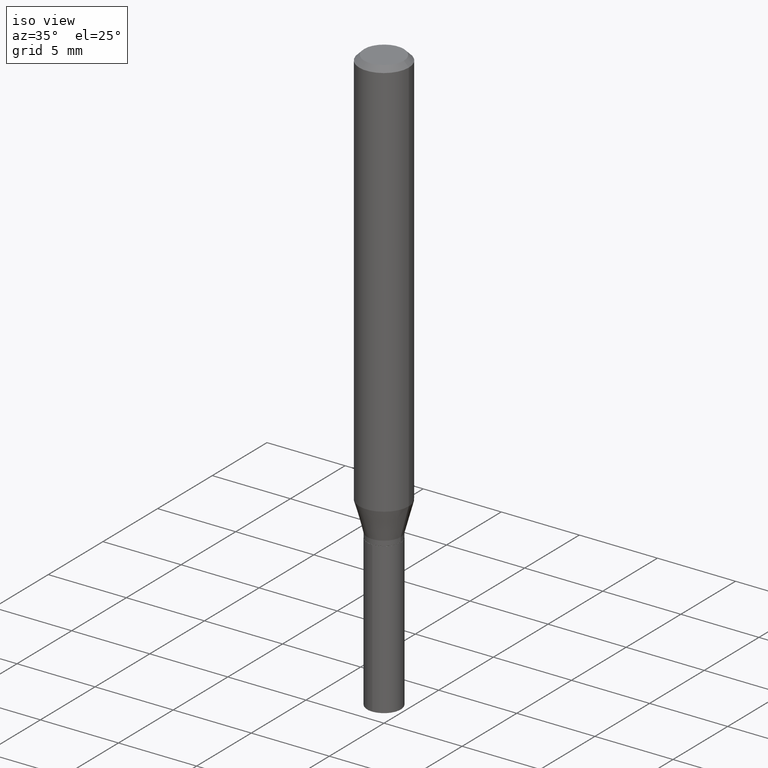
[diagram: clean part render]
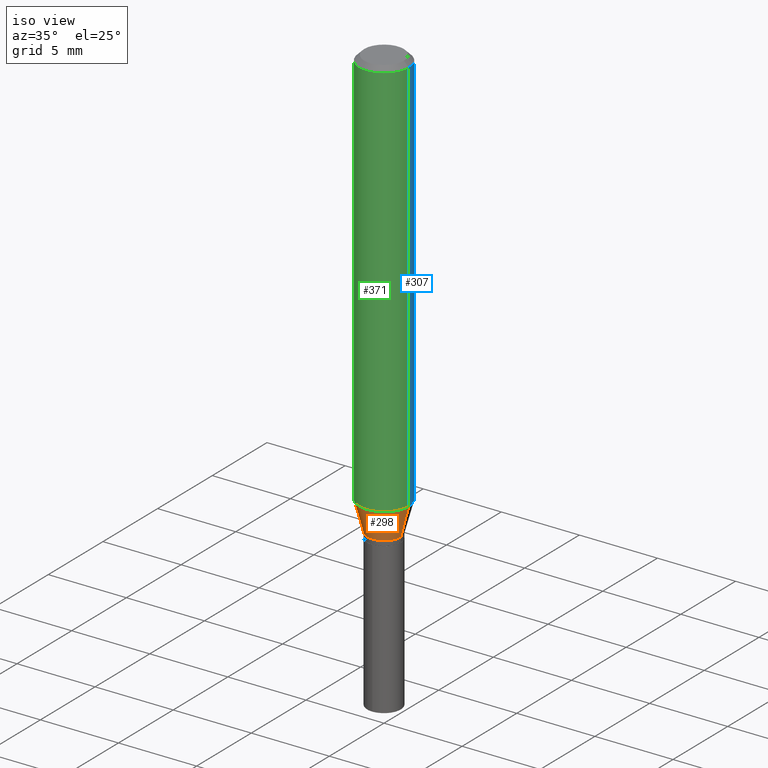
[diagram: same view with three faces highlighted in distinct colors, each labeled with its STEP entity id]
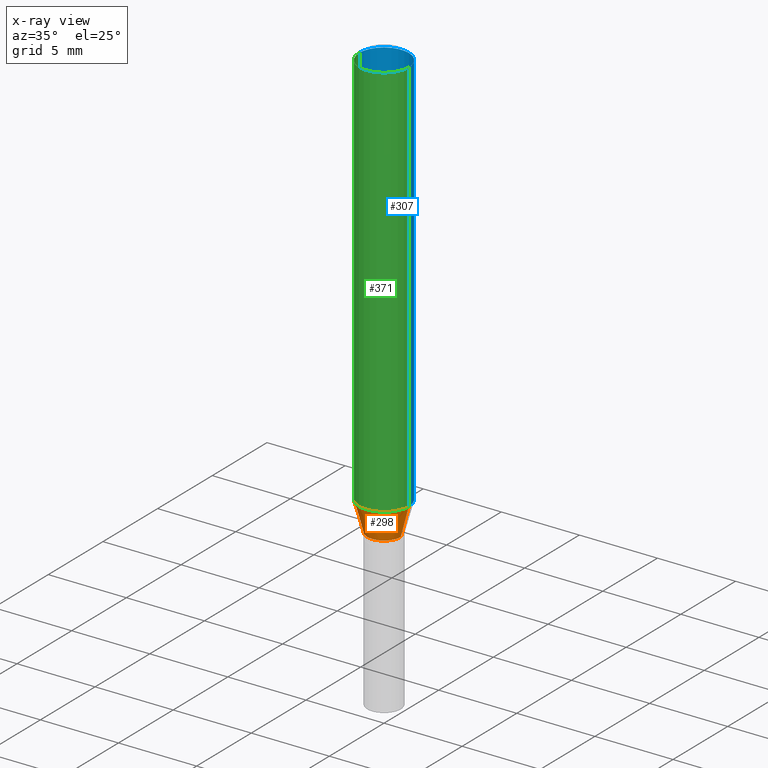
[diagram: x-ray of the same camera — body ghosted, the three highlighted faces saturated]
A machine part, iso view with three faces highlighted in distinct colors.
The next image is the same camera in x-ray (body ghosted, the three faces saturated) — at least one of them is partly hidden behind the body in this view.
Their STEP definitions:

[orange] entity #298 — the highlighted conical surface has half-angle 15 deg.
#10 = CARTESIAN_POINT ( 'NONE',  ( 0.04229999999999999732, -4.091666980990281781E-15, -1.087300000000000155 ) ) ;
#18 = CARTESIAN_POINT ( 'NONE',  ( -0.04229999999999999732, -3.495728082497630319E-15, -1.087300000000000155 ) ) ;
#39 = EDGE_CURVE ( 'NONE', #382, #103, #442, .T. ) ;
#42 = CARTESIAN_POINT ( 'NONE',  ( 2.658958232965099489E-29, -3.796287659724152333E-15, -1.087300000000000155 ) ) ;
#50 = DIRECTION ( 'NONE',  ( 1.000000000000000000, -6.982962677686266711E-15, 0.000000000000000000 ) ) ;
#53 = LINE ( 'NONE', #18, #302 ) ;
#88 = CARTESIAN_POINT ( 'NONE',  ( 2.474600633538342293E-29, -3.533073867569279079E-15, -1.011912573687108630 ) ) ;
#95 = VERTEX_POINT ( 'NONE', #148 ) ;
#103 = VERTEX_POINT ( 'NONE', #118 ) ;
#114 = DIRECTION ( 'NONE',  ( -2.445468806185136597E-29, 3.491481338843145583E-15, 1.000000000000000000 ) ) ;
#118 = CARTESIAN_POINT ( 'NONE',  ( 0.04229999999999999732, -4.091666980990281781E-15, -1.087300000000000155 ) ) ;
#123 = CARTESIAN_POINT ( 'NONE',  ( 2.658958232965099489E-29, -3.796287659724152333E-15, -1.087300000000000155 ) ) ;
#148 = CARTESIAN_POINT ( 'NONE',  ( 0.06250000000000012490, -3.969509034924671143E-15, -1.011912573687108630 ) ) ;
#167 = EDGE_CURVE ( 'NONE', #103, #95, #316, .T. ) ;
#173 = EDGE_CURVE ( 'NONE', #373, #95, #204, .T. ) ;
#176 = ORIENTED_EDGE ( 'NONE', *, *, #167, .T. ) ;
#181 = CARTESIAN_POINT ( 'NONE',  ( -0.06250000000000012490, -3.088984657719215279E-15, -1.011912573687108630 ) ) ;
#191 = AXIS2_PLACEMENT_3D ( 'NONE', #42, #313, #50 ) ;
#204 = CIRCLE ( 'NONE', #451, 0.06250000000000012490 ) ;
#214 = CARTESIAN_POINT ( 'NONE',  ( -0.04229999999999999732, -3.517026118664573451E-15, -1.087300000000000155 ) ) ;
#221 = CONICAL_SURFACE ( 'NONE', #318, 0.04229999999999999732, 0.2617993877991497964 ) ;
#227 = EDGE_LOOP ( 'NONE', ( #377, #249, #176, #415 ) ) ;
#233 = DIRECTION ( 'NONE',  ( 1.000000000000000000, -6.982962677686264344E-15, 0.000000000000000000 ) ) ;
#242 = DIRECTION ( 'NONE',  ( 1.000000000000000000, -6.982962677686266711E-15, 0.000000000000000000 ) ) ;
#243 = EDGE_CURVE ( 'NONE', #382, #373, #53, .T. ) ;
#248 = DIRECTION ( 'NONE',  ( -0.2588190451025211281, 5.211531920934548675E-15, 0.9659258262890682012 ) ) ;
#249 = ORIENTED_EDGE ( 'NONE', *, *, #39, .T. ) ;
#285 = DIRECTION ( 'NONE',  ( -2.445468806185136597E-29, 3.491481338843145583E-15, 1.000000000000000000 ) ) ;
#298 = ADVANCED_FACE ( 'NONE', ( #476 ), #221, .T. ) ;
#302 = VECTOR ( 'NONE', #248, 39.37007874015748143 ) ;
#313 = DIRECTION ( 'NONE',  ( -2.445468806185136597E-29, 3.491481338843145583E-15, 1.000000000000000000 ) ) ;
#316 = LINE ( 'NONE', #10, #490 ) ;
#318 = AXIS2_PLACEMENT_3D ( 'NONE', #123, #285, #242 ) ;
#373 = VERTEX_POINT ( 'NONE', #181 ) ;
#377 = ORIENTED_EDGE ( 'NONE', *, *, #243, .F. ) ;
#382 = VERTEX_POINT ( 'NONE', #214 ) ;
#415 = ORIENTED_EDGE ( 'NONE', *, *, #173, .F. ) ;
#442 = CIRCLE ( 'NONE', #191, 0.04229999999999999732 ) ;
#451 = AXIS2_PLACEMENT_3D ( 'NONE', #88, #114, #233 ) ;
#467 = DIRECTION ( 'NONE',  ( 0.2588190451025211281, 1.565188264969623940E-15, 0.9659258262890682012 ) ) ;
#476 = FACE_OUTER_BOUND ( 'NONE', #227, .T. ) ;
#490 = VECTOR ( 'NONE', #467, 39.37007874015748143 ) ;

[blue] entity #307 — the highlighted cylindrical surface (edge-blend (fillet) strip) has radius 1.5875 mm, axis along (-0, 0, 1).
#7 = AXIS2_PLACEMENT_3D ( 'NONE', #131, #56, #94 ) ;
#11 = CARTESIAN_POINT ( 'NONE',  ( 0.06250000000000001388, -4.800786840909313294E-16, -0.01250000000000008916 ) ) ;
#35 = VERTEX_POINT ( 'NONE', #11 ) ;
#38 = DIRECTION ( 'NONE',  ( -2.445468806185136597E-29, 3.491481338843145583E-15, 1.000000000000000000 ) ) ;
#56 = DIRECTION ( 'NONE',  ( -2.445468806185136597E-29, 3.491481338843145583E-15, 1.000000000000000000 ) ) ;
#61 = ORIENTED_EDGE ( 'NONE', *, *, #66, .T. ) ;
#66 = EDGE_CURVE ( 'NONE', #95, #373, #219, .T. ) ;
#86 = CARTESIAN_POINT ( 'NONE',  ( 2.474600633538342293E-29, -3.533073867569279079E-15, -1.011912573687108630 ) ) ;
#94 = DIRECTION ( 'NONE',  ( 1.000000000000000000, -6.982962677686266711E-15, 4.876176775795935793E-29 ) ) ;
#95 = VERTEX_POINT ( 'NONE', #148 ) ;
#113 = CIRCLE ( 'NONE', #174, 0.06250000000000001388 ) ;
#131 = CARTESIAN_POINT ( 'NONE',  ( 0.000000000000000000, 0.000000000000000000, 0.000000000000000000 ) ) ;
#139 = ORIENTED_EDGE ( 'NONE', *, *, #487, .T. ) ;
#143 = DIRECTION ( 'NONE',  ( 1.000000000000000000, -6.982962677686265922E-15, 0.000000000000000000 ) ) ;
#148 = CARTESIAN_POINT ( 'NONE',  ( 0.06250000000000012490, -3.969509034924671143E-15, -1.011912573687108630 ) ) ;
#156 = DIRECTION ( 'NONE',  ( -2.445468806185136597E-29, 3.491481338843145583E-15, 1.000000000000000000 ) ) ;
#174 = AXIS2_PLACEMENT_3D ( 'NONE', #341, #38, #143 ) ;
#175 = DIRECTION ( 'NONE',  ( -2.445468806185136877E-29, 3.491481338843145188E-15, 1.000000000000000000 ) ) ;
#181 = CARTESIAN_POINT ( 'NONE',  ( -0.06250000000000012490, -3.088984657719215279E-15, -1.011912573687108630 ) ) ;
#219 = CIRCLE ( 'NONE', #294, 0.06250000000000012490 ) ;
#222 = ORIENTED_EDGE ( 'NONE', *, *, #444, .F. ) ;
#223 = VECTOR ( 'NONE', #175, 39.37007874015748143 ) ;
#264 = ORIENTED_EDGE ( 'NONE', *, *, #394, .F. ) ;
#266 = CARTESIAN_POINT ( 'NONE',  ( -0.06250000000000001388, -1.344269482302345718E-15, -0.01250000000000008916 ) ) ;
#283 = DIRECTION ( 'NONE',  ( 1.000000000000000000, -6.982962677686264344E-15, 0.000000000000000000 ) ) ;
#290 = FACE_OUTER_BOUND ( 'NONE', #332, .T. ) ;
#294 = AXIS2_PLACEMENT_3D ( 'NONE', #86, #156, #283 ) ;
#305 = CARTESIAN_POINT ( 'NONE',  ( -0.06250000000000006939, 4.440892098500631092E-16, -3.074334431409319267E-30 ) ) ;
#307 = ADVANCED_FACE ( 'NONE', ( #290 ), #437, .T. ) ;
#308 = LINE ( 'NONE', #414, #482 ) ;
#332 = EDGE_LOOP ( 'NONE', ( #61, #139, #222, #264 ) ) ;
#339 = DIRECTION ( 'NONE',  ( -2.445468806185136877E-29, 3.491481338843145188E-15, 1.000000000000000000 ) ) ;
#341 = CARTESIAN_POINT ( 'NONE',  ( 3.056836007731442729E-31, -4.364351673553962300E-17, -0.01250000000000008916 ) ) ;
#346 = LINE ( 'NONE', #305, #223 ) ;
#373 = VERTEX_POINT ( 'NONE', #181 ) ;
#394 = EDGE_CURVE ( 'NONE', #95, #35, #308, .T. ) ;
#414 = CARTESIAN_POINT ( 'NONE',  ( 0.06250000000000006939, -4.364351673553921624E-16, 3.047610484872463374E-30 ) ) ;
#416 = VERTEX_POINT ( 'NONE', #266 ) ;
#437 = CYLINDRICAL_SURFACE ( 'NONE', #7, 0.06250000000000006939 ) ;
#444 = EDGE_CURVE ( 'NONE', #35, #416, #113, .T. ) ;
#482 = VECTOR ( 'NONE', #339, 39.37007874015748143 ) ;
#487 = EDGE_CURVE ( 'NONE', #373, #416, #346, .T. ) ;

[green] entity #371 — the highlighted cylindrical surface (edge-blend (fillet) strip) has radius 1.5875 mm, axis along (-0, 0, 1).
#11 = CARTESIAN_POINT ( 'NONE',  ( 0.06250000000000001388, -4.800786840909313294E-16, -0.01250000000000008916 ) ) ;
#16 = EDGE_CURVE ( 'NONE', #416, #35, #74, .T. ) ;
#19 = ORIENTED_EDGE ( 'NONE', *, *, #16, .F. ) ;
#27 = CARTESIAN_POINT ( 'NONE',  ( 0.000000000000000000, 0.000000000000000000, 0.000000000000000000 ) ) ;
#35 = VERTEX_POINT ( 'NONE', #11 ) ;
#36 = FACE_OUTER_BOUND ( 'NONE', #297, .T. ) ;
#74 = CIRCLE ( 'NONE', #370, 0.06250000000000001388 ) ;
#88 = CARTESIAN_POINT ( 'NONE',  ( 2.474600633538342293E-29, -3.533073867569279079E-15, -1.011912573687108630 ) ) ;
#95 = VERTEX_POINT ( 'NONE', #148 ) ;
#108 = DIRECTION ( 'NONE',  ( 1.000000000000000000, -6.982962677686266711E-15, 4.876176775795935793E-29 ) ) ;
#109 = ORIENTED_EDGE ( 'NONE', *, *, #394, .T. ) ;
#114 = DIRECTION ( 'NONE',  ( -2.445468806185136597E-29, 3.491481338843145583E-15, 1.000000000000000000 ) ) ;
#138 = DIRECTION ( 'NONE',  ( -2.445468806185136597E-29, 3.491481338843145583E-15, 1.000000000000000000 ) ) ;
#140 = CYLINDRICAL_SURFACE ( 'NONE', #421, 0.06250000000000006939 ) ;
#148 = CARTESIAN_POINT ( 'NONE',  ( 0.06250000000000012490, -3.969509034924671143E-15, -1.011912573687108630 ) ) ;
#169 = ORIENTED_EDGE ( 'NONE', *, *, #173, .T. ) ;
#173 = EDGE_CURVE ( 'NONE', #373, #95, #204, .T. ) ;
#175 = DIRECTION ( 'NONE',  ( -2.445468806185136877E-29, 3.491481338843145188E-15, 1.000000000000000000 ) ) ;
#181 = CARTESIAN_POINT ( 'NONE',  ( -0.06250000000000012490, -3.088984657719215279E-15, -1.011912573687108630 ) ) ;
#194 = DIRECTION ( 'NONE',  ( 1.000000000000000000, -6.982962677686265922E-15, 0.000000000000000000 ) ) ;
#195 = DIRECTION ( 'NONE',  ( -2.445468806185136597E-29, 3.491481338843145583E-15, 1.000000000000000000 ) ) ;
#204 = CIRCLE ( 'NONE', #451, 0.06250000000000012490 ) ;
#210 = ORIENTED_EDGE ( 'NONE', *, *, #487, .F. ) ;
#223 = VECTOR ( 'NONE', #175, 39.37007874015748143 ) ;
#233 = DIRECTION ( 'NONE',  ( 1.000000000000000000, -6.982962677686264344E-15, 0.000000000000000000 ) ) ;
#236 = CARTESIAN_POINT ( 'NONE',  ( 3.056836007731442729E-31, -4.364351673553962300E-17, -0.01250000000000008916 ) ) ;
#266 = CARTESIAN_POINT ( 'NONE',  ( -0.06250000000000001388, -1.344269482302345718E-15, -0.01250000000000008916 ) ) ;
#297 = EDGE_LOOP ( 'NONE', ( #210, #169, #109, #19 ) ) ;
#305 = CARTESIAN_POINT ( 'NONE',  ( -0.06250000000000006939, 4.440892098500631092E-16, -3.074334431409319267E-30 ) ) ;
#308 = LINE ( 'NONE', #414, #482 ) ;
#339 = DIRECTION ( 'NONE',  ( -2.445468806185136877E-29, 3.491481338843145188E-15, 1.000000000000000000 ) ) ;
#346 = LINE ( 'NONE', #305, #223 ) ;
#370 = AXIS2_PLACEMENT_3D ( 'NONE', #236, #195, #194 ) ;
#371 = ADVANCED_FACE ( 'NONE', ( #36 ), #140, .T. ) ;
#373 = VERTEX_POINT ( 'NONE', #181 ) ;
#394 = EDGE_CURVE ( 'NONE', #95, #35, #308, .T. ) ;
#414 = CARTESIAN_POINT ( 'NONE',  ( 0.06250000000000006939, -4.364351673553921624E-16, 3.047610484872463374E-30 ) ) ;
#416 = VERTEX_POINT ( 'NONE', #266 ) ;
#421 = AXIS2_PLACEMENT_3D ( 'NONE', #27, #138, #108 ) ;
#451 = AXIS2_PLACEMENT_3D ( 'NONE', #88, #114, #233 ) ;
#482 = VECTOR ( 'NONE', #339, 39.37007874015748143 ) ;
#487 = EDGE_CURVE ( 'NONE', #373, #416, #346, .T. ) ;